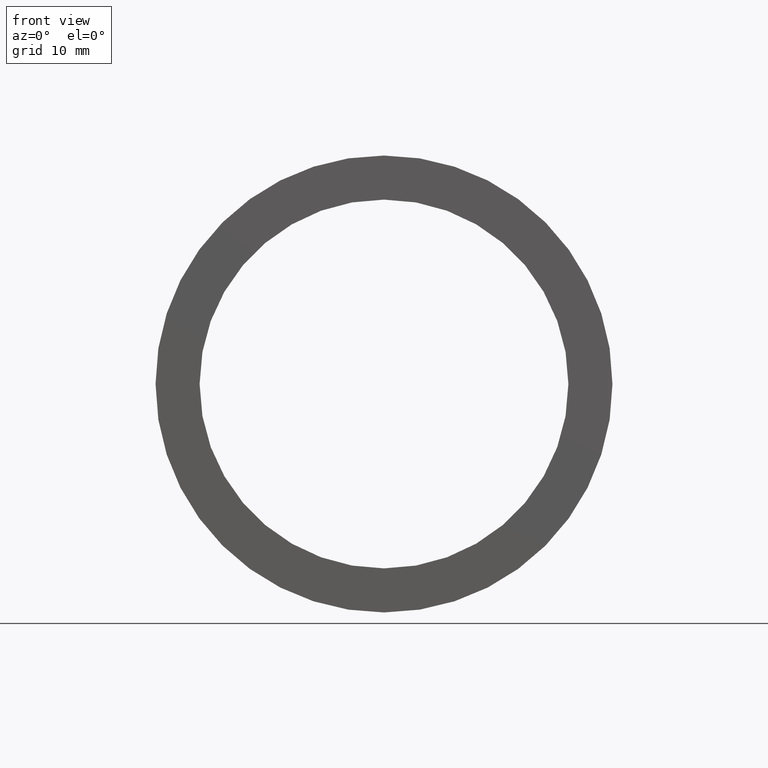
[diagram: clean part render]
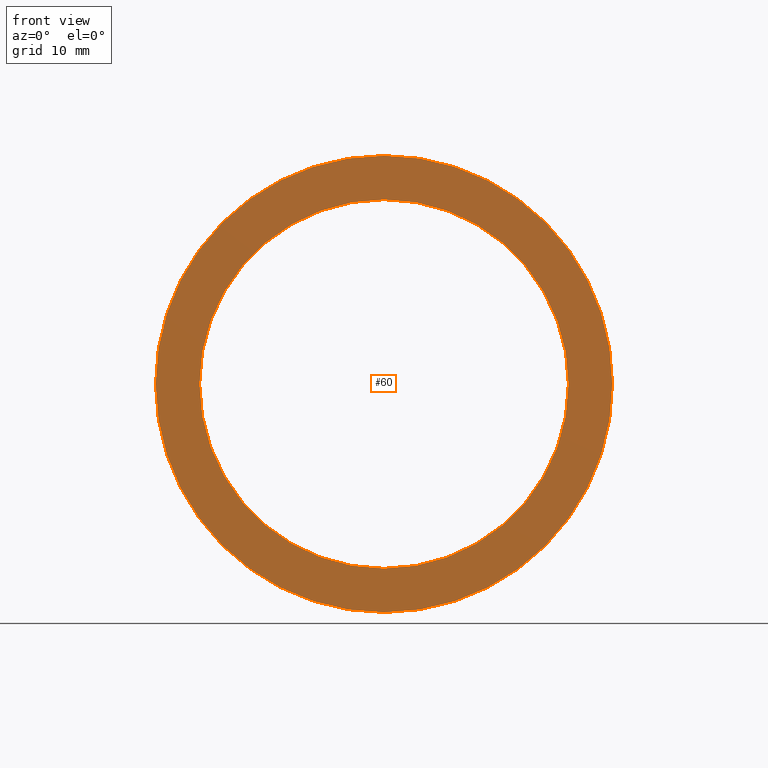
[diagram: same view with one face highlighted and labeled with its STEP entity id]
A machine part, front view. The second image highlights one B-rep face of the part: STEP entity #60.
In plain terms, the highlighted planar face has unit normal (-0, 1, 0).
Its self-contained STEP definition (entity closure, byte-faithful):
#1 = CARTESIAN_POINT ( 'NONE',  ( 0.0000000000000000000, -2.775557561562891400E-014, 0.0000000000000000000 ) ) ;
#6 = ORIENTED_EDGE ( 'NONE', *, *, #76, .F. ) ;
#10 = DIRECTION ( 'NONE',  ( -0.0000000000000000000, 1.000000000000000000, -0.0000000000000000000 ) ) ;
#19 = DIRECTION ( 'NONE',  ( -0.0000000000000000000, 1.000000000000000000, -0.0000000000000000000 ) ) ;
#30 = VERTEX_POINT ( 'NONE', #151 ) ;
#31 = DIRECTION ( 'NONE',  ( -0.0000000000000000000, 1.000000000000000000, 0.0000000000000000000 ) ) ;
#34 = CARTESIAN_POINT ( 'NONE',  ( 20.50000000000002100, -1.424099456732195600E-014, 0.0000000000000000000 ) ) ;
#36 = CARTESIAN_POINT ( 'NONE',  ( 0.0000000000000000000, -2.775557561562891400E-014, 0.0000000000000000000 ) ) ;
#38 = DIRECTION ( 'NONE',  ( 0.0000000000000000000, 0.0000000000000000000, 1.000000000000000000 ) ) ;
#60 = ADVANCED_FACE ( 'NONE', ( #214, #110 ), #169, .F. ) ;
#70 = AXIS2_PLACEMENT_3D ( 'NONE', #1, #154, #100 ) ;
#76 = EDGE_CURVE ( 'NONE', #155, #212, #127, .T. ) ;
#77 = DIRECTION ( 'NONE',  ( -0.0000000000000000000, 1.000000000000000000, -0.0000000000000000000 ) ) ;
#91 = CARTESIAN_POINT ( 'NONE',  ( 0.0000000000000000000, -2.775557561562891400E-014, 0.0000000000000000000 ) ) ;
#92 = DIRECTION ( 'NONE',  ( 0.0000000000000000000, 0.0000000000000000000, 1.000000000000000000 ) ) ;
#100 = DIRECTION ( 'NONE',  ( 0.0000000000000000000, 0.0000000000000000000, 1.000000000000000000 ) ) ;
#103 = AXIS2_PLACEMENT_3D ( 'NONE', #34, #31, #92 ) ;
#108 = DIRECTION ( 'NONE',  ( 0.0000000000000000000, 0.0000000000000000000, 1.000000000000000000 ) ) ;
#110 = FACE_BOUND ( 'NONE', #145, .T. ) ;
#122 = EDGE_CURVE ( 'NONE', #30, #187, #183, .T. ) ;
#124 = ORIENTED_EDGE ( 'NONE', *, *, #199, .F. ) ;
#127 = CIRCLE ( 'NONE', #180, 25.40000000000002000 ) ;
#142 = ORIENTED_EDGE ( 'NONE', *, *, #122, .T. ) ;
#145 = EDGE_LOOP ( 'NONE', ( #177, #142 ) ) ;
#147 = AXIS2_PLACEMENT_3D ( 'NONE', #36, #19, #38 ) ;
#149 = EDGE_LOOP ( 'NONE', ( #124, #6 ) ) ;
#151 = CARTESIAN_POINT ( 'NONE',  ( 2.510525938252076500E-015, -2.775557561562891400E-014, -20.50000000000002100 ) ) ;
#154 = DIRECTION ( 'NONE',  ( -0.0000000000000000000, 1.000000000000000000, -0.0000000000000000000 ) ) ;
#155 = VERTEX_POINT ( 'NONE', #170 ) ;
#169 = PLANE ( 'NONE',  #103 ) ;
#170 = CARTESIAN_POINT ( 'NONE',  ( 3.110602869834279600E-015, -2.775557561562891400E-014, -25.40000000000002000 ) ) ;
#171 = CARTESIAN_POINT ( 'NONE',  ( 0.0000000000000000000, -2.775557561562891400E-014, 20.50000000000002100 ) ) ;
#172 = CARTESIAN_POINT ( 'NONE',  ( 0.0000000000000000000, -2.775557561562891400E-014, 25.40000000000002000 ) ) ;
#174 = EDGE_CURVE ( 'NONE', #187, #30, #200, .T. ) ;
#177 = ORIENTED_EDGE ( 'NONE', *, *, #174, .T. ) ;
#180 = AXIS2_PLACEMENT_3D ( 'NONE', #91, #10, #108 ) ;
#183 = CIRCLE ( 'NONE', #147, 20.50000000000002100 ) ;
#187 = VERTEX_POINT ( 'NONE', #171 ) ;
#192 = DIRECTION ( 'NONE',  ( 0.0000000000000000000, 0.0000000000000000000, 1.000000000000000000 ) ) ;
#194 = CIRCLE ( 'NONE', #210, 25.40000000000002000 ) ;
#199 = EDGE_CURVE ( 'NONE', #212, #155, #194, .T. ) ;
#200 = CIRCLE ( 'NONE', #70, 20.50000000000002100 ) ;
#210 = AXIS2_PLACEMENT_3D ( 'NONE', #223, #77, #192 ) ;
#212 = VERTEX_POINT ( 'NONE', #172 ) ;
#214 = FACE_OUTER_BOUND ( 'NONE', #149, .T. ) ;
#223 = CARTESIAN_POINT ( 'NONE',  ( 0.0000000000000000000, -2.775557561562891400E-014, 0.0000000000000000000 ) ) ;